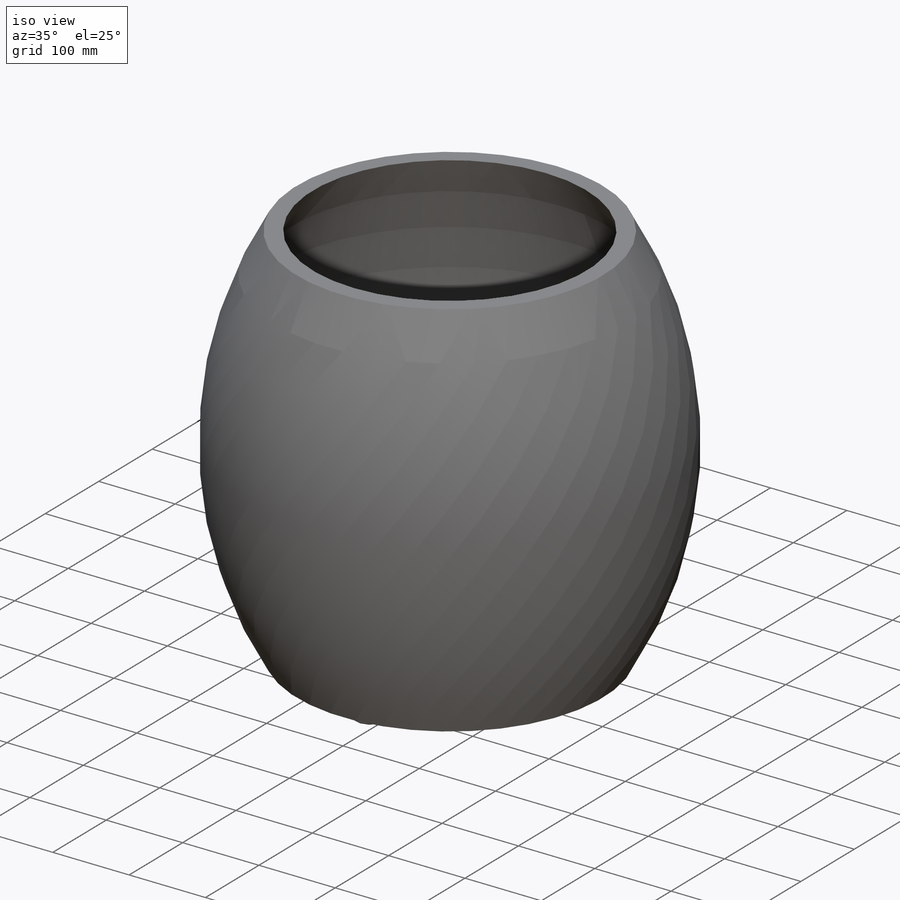
[diagram: iso view]
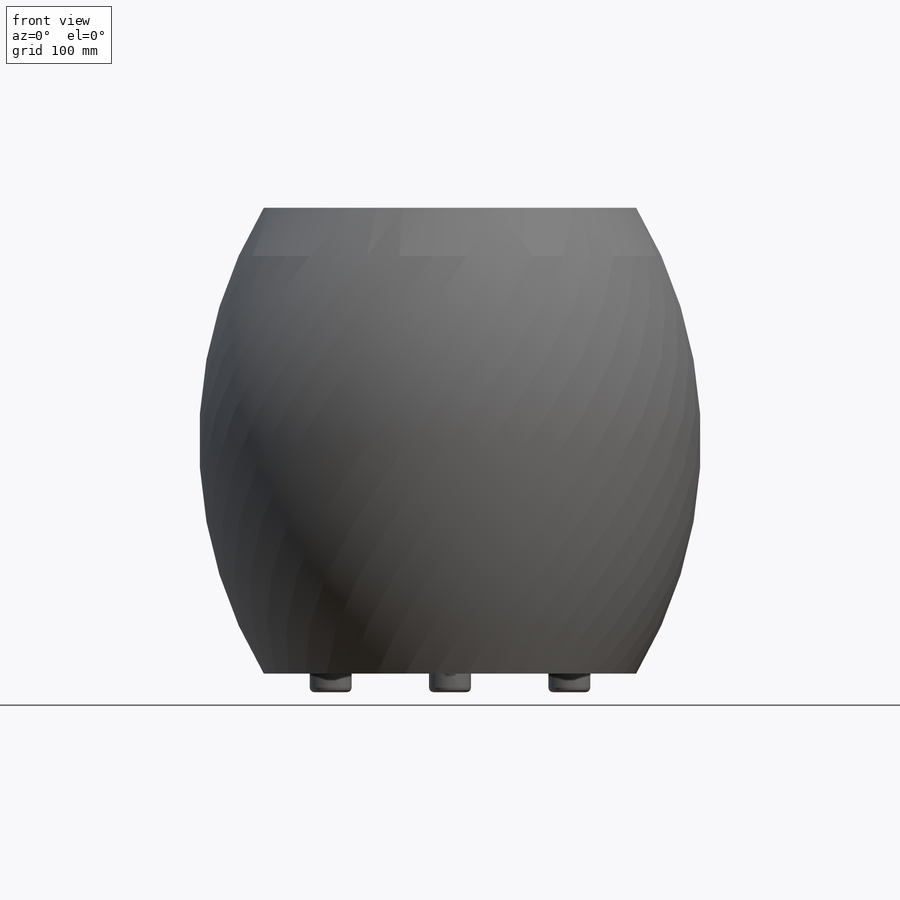
[diagram: front view]
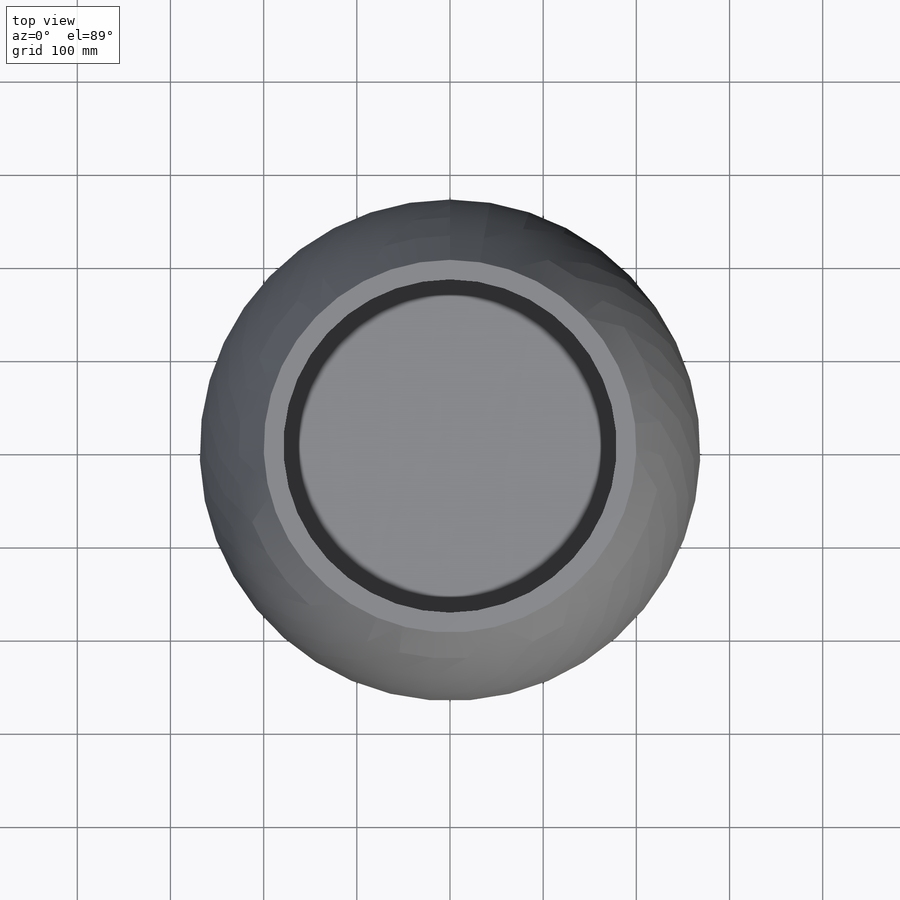
[diagram: top view]
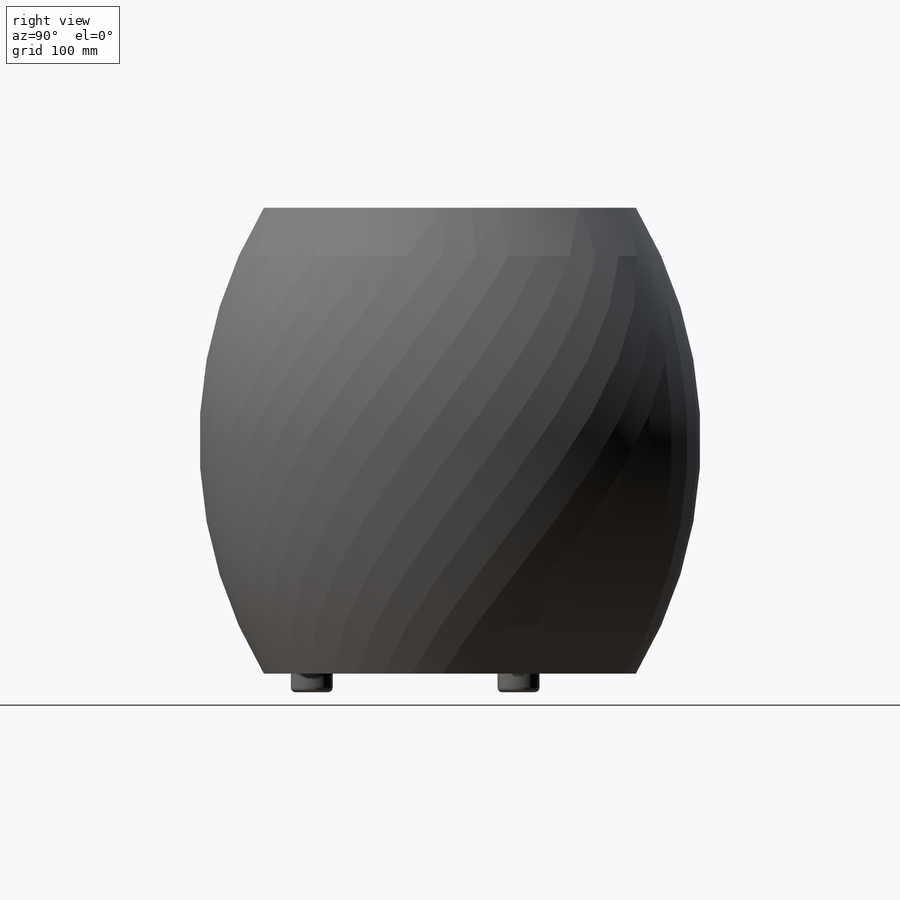
[diagram: right view]
SOLIDWORKS PART (.sldprt)
format: sldprt  version: not decoded by parser v0  size: 820,224 bytes
history: native  units: mm
features: sketch x3, material x1, revolve x1, shell x1, extrude x1, fillet x1 (+11 scaffold rows collapsed)
feature tree (19):
  scaffold x11  (default folders/planes/origin — collapsed)
  material  "Material <not specified>"
  sketch  "Sketch2"  dims[D3=484.369mm D1=500.0mm D2=200.0mm D4=200.0mm]
  sketch  "Sketch3"  dims[D1=~528.294829mm]
  revolve  "Revolve1"  Angle=360deg
  shell  "Shell1"  Thickness=18mm
  sketch  "Sketch4"  dims[D1=45.0mm D2=3.0]
  extrude  "Boss-Extrude1"  Depth=20mm
  fillet  "Fillet1"  Radius=5mm
decode coverage: 7 of 7 modeling features carry decoded parameters
note: ~ marks probable driven/reference dimensions
note: suppression state not decoded; provenance and decode notes live in map.json
